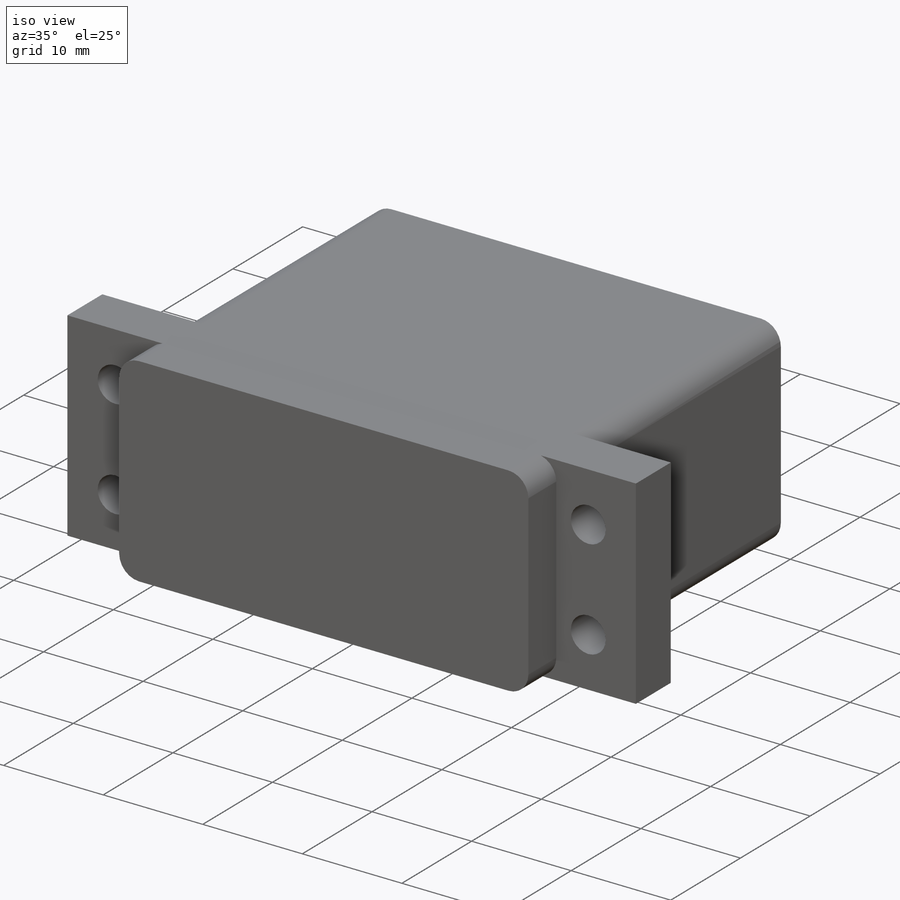
[diagram: iso view]
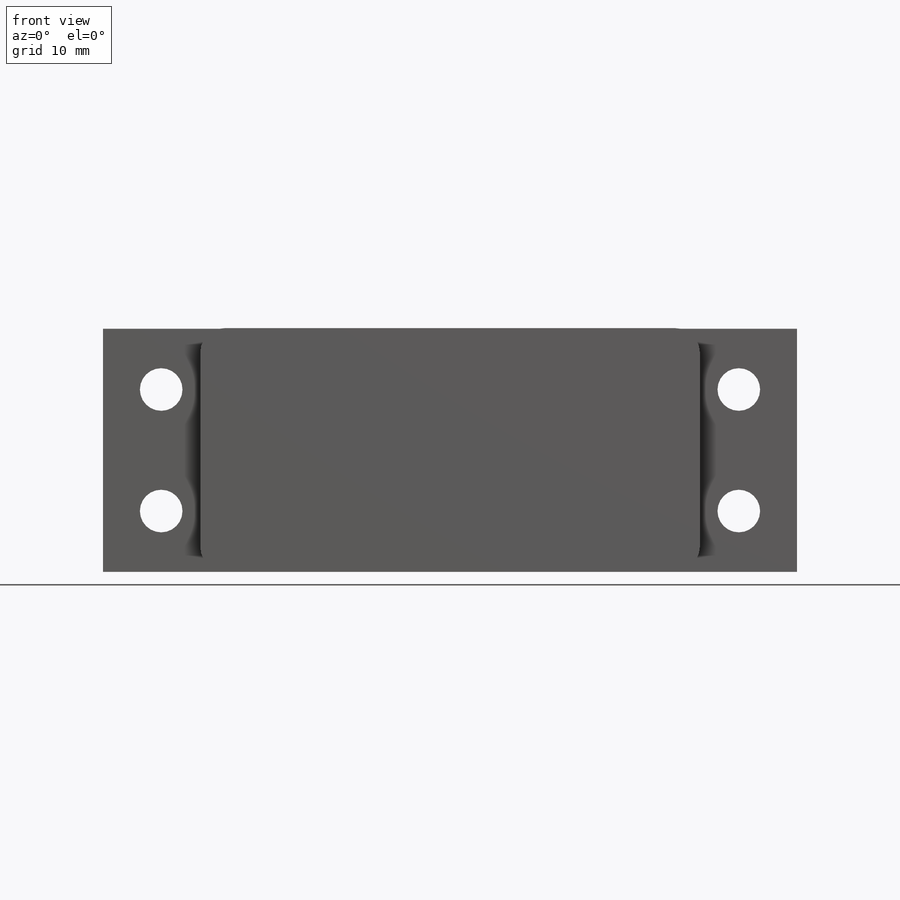
[diagram: front view]
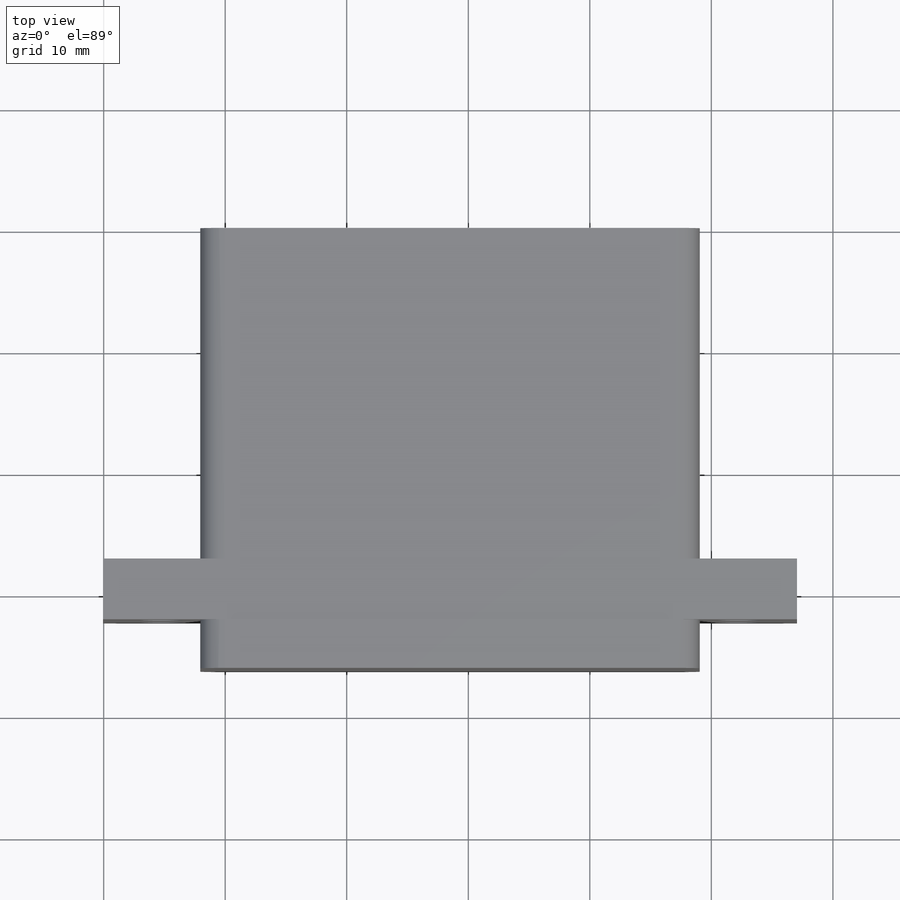
[diagram: top view]
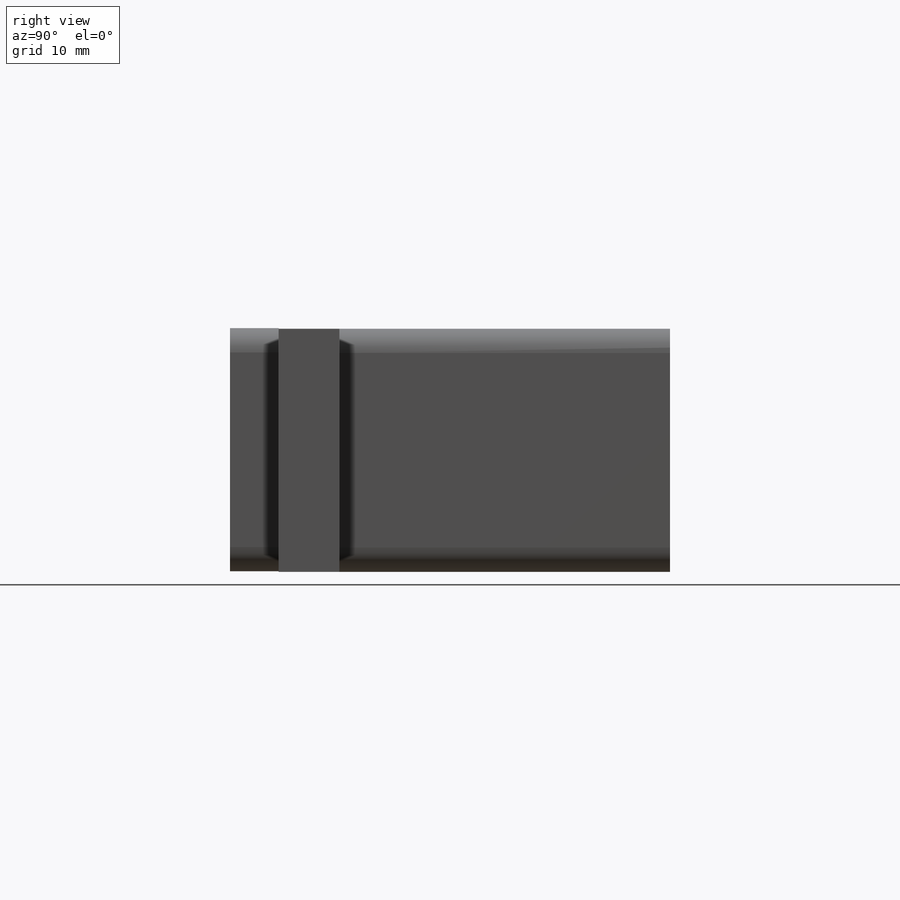
[diagram: right view]
SOLIDWORKS PART (.sldprt)
format: sldprt  version: not decoded by parser v0  size: 200,192 bytes
history: native  units: mm
features: sketch x4, extrude x3, material x1, cut_extrude x1 (+11 scaffold rows collapsed)
feature tree (20):
  scaffold x11  (default folders/planes/origin — collapsed)
  material  "Material <not specified>"
  sketch  "Sketch1"  dims[D3=2.0mm D1=20.0mm D2=41.1mm]
  extrude  "Boss-Extrude1"  Depth=27.21mm
  sketch  "Sketch2"  dims[D1=8.0mm D2=8.0mm]
  extrude  "Boss-Extrude2"  Depth=5mm
  sketch  "Sketch3"  dims[D1=8.0mm D2=8.0mm]
  extrude  "Boss-Extrude3"  Depth=4mm
  sketch  "Sketch4"  dims[D1=~3.505193mm D2=5.0mm]
  cut_extrude  "Cut-Extrude1"  Depth=5.63mm
decode coverage: 8 of 8 modeling features carry decoded parameters
note: ~ marks probable driven/reference dimensions
note: suppression state not decoded; provenance and decode notes live in map.json
